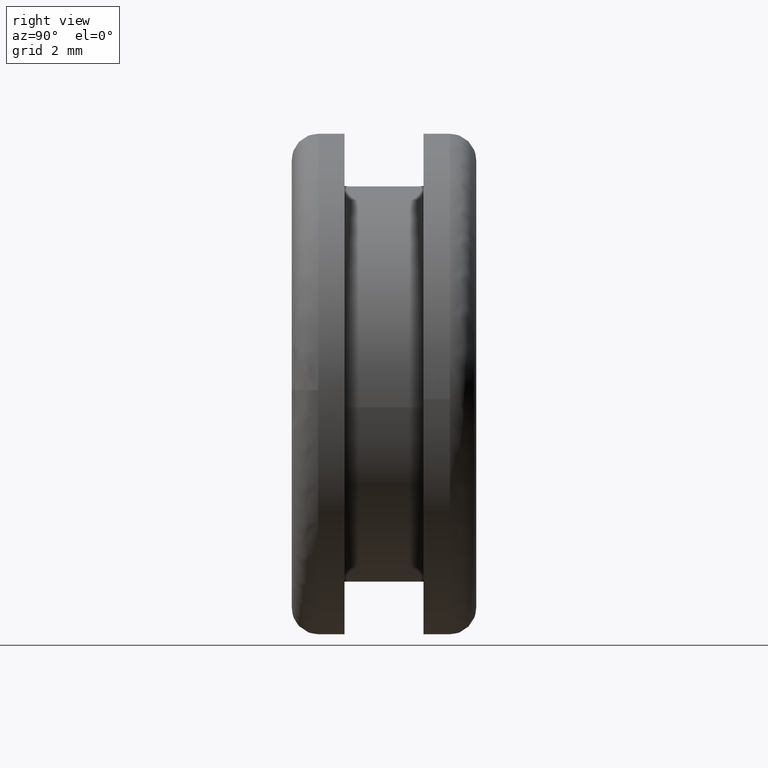
[diagram: clean part render]
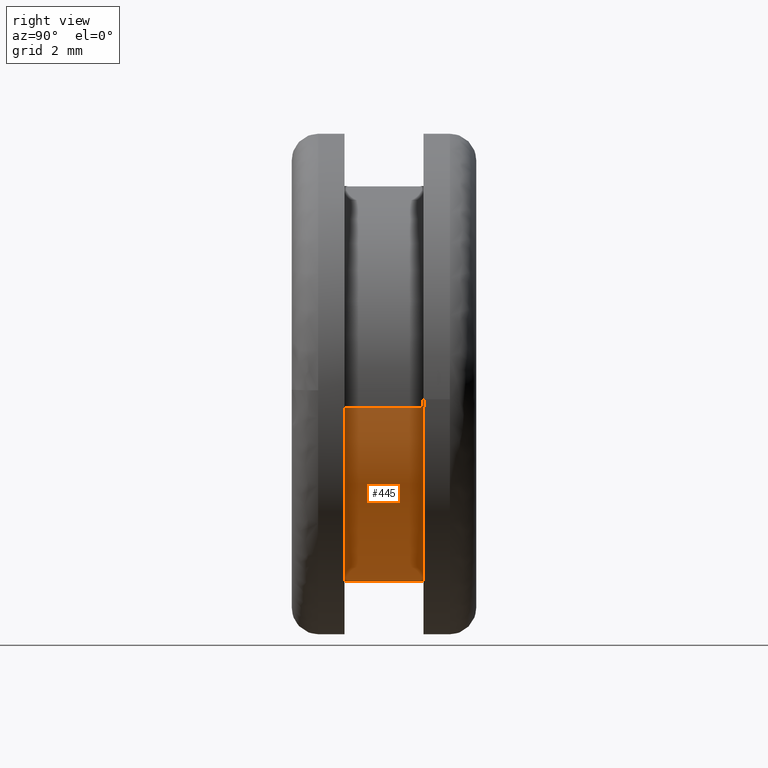
[diagram: same view with one face highlighted and labeled with its STEP entity id]
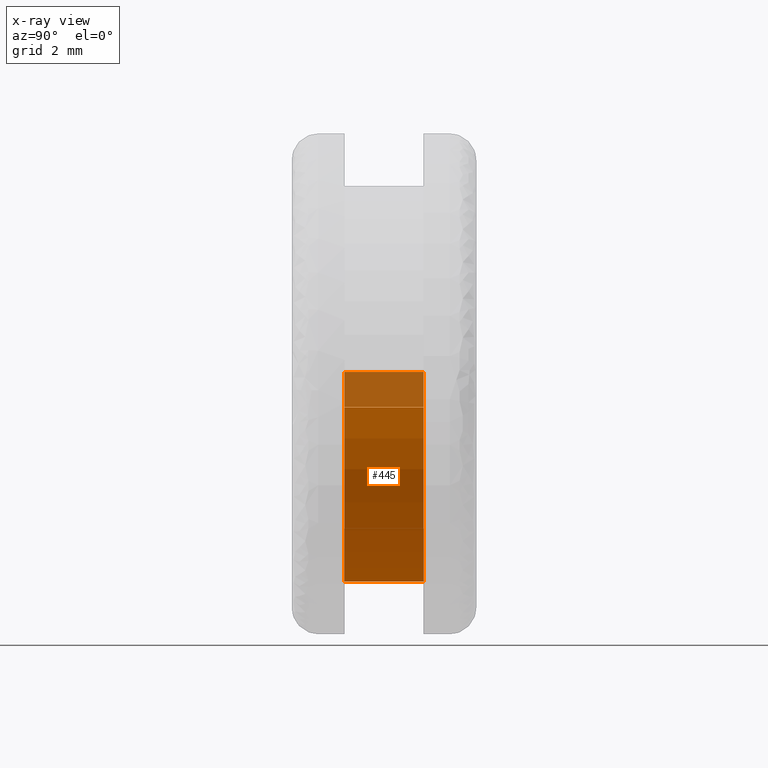
[diagram: x-ray of the same camera — body ghosted, the highlighted face saturated]
A machine part, right view. The second image highlights one B-rep face of the part: STEP entity #445.
The next image is the same camera in x-ray: the body ghosted, the highlighted face saturated — about 17% of this face is hidden behind the body in this view.
In plain terms, the highlighted face is a freeform B-spline surface patch.
Its self-contained STEP definition (entity closure, byte-faithful):
#282=CARTESIAN_POINT('',(7.447572368186221,1.999999999999989,-0.885249016135149));
#283=VERTEX_POINT('',#282);
#301=CARTESIAN_POINT('',(7.447572356828653,5.0,-0.885249111686859));
#302=VERTEX_POINT('',#301);
#303=CARTESIAN_POINT('',(7.447572356828653,5.0,-0.885249111686859));
#304=CARTESIAN_POINT('',(7.447572368186221,1.999999999999989,-0.885249016135149));
#305=QUASI_UNIFORM_CURVE('',1,(#303,#304),.UNSPECIFIED.,.F.,.U.);
#306=EDGE_CURVE('',#302,#283,#305,.T.);
#325=CARTESIAN_POINT('',(-7.486011239723709,5.0,0.457859933509482));
#326=VERTEX_POINT('',#325);
#340=CARTESIAN_POINT('',(-7.486011242863441,2.000000000000035,0.457859882174362));
#341=VERTEX_POINT('',#340);
#342=CARTESIAN_POINT('',(-7.486011239723709,5.0,0.457859933509482));
#343=CARTESIAN_POINT('',(-7.486011242863441,2.000000000000035,0.457859882174362));
#344=QUASI_UNIFORM_CURVE('',1,(#342,#343),.UNSPECIFIED.,.F.,.U.);
#345=EDGE_CURVE('',#326,#341,#344,.T.);
#363=CARTESIAN_POINT('',(-7.486010988164000,5.075000000000001,0.457864046511427));
#364=CARTESIAN_POINT('',(-7.943875034675429,5.075000000000002,-7.028146941652573));
#365=CARTESIAN_POINT('',(-0.457864046511427,5.075000000000001,-7.486010988164000));
#366=CARTESIAN_POINT('',(6.611576181296258,5.075000000000002,-7.918396475493956));
#367=CARTESIAN_POINT('',(7.447571447727496,5.075000000000002,-0.885256759925689));
#368=CARTESIAN_POINT('',(-7.486010988164000,1.923125000000000,0.457864046511427));
#369=CARTESIAN_POINT('',(-7.943875034675429,1.923125000000000,-7.028146941652573));
#370=CARTESIAN_POINT('',(-0.457864046511427,1.923125000000000,-7.486010988164000));
#371=CARTESIAN_POINT('',(6.611576181296258,1.923125000000000,-7.918396475493956));
#372=CARTESIAN_POINT('',(7.447571447727496,1.923125000000000,-0.885256759925689));
#380=(BOUNDED_SURFACE()B_SPLINE_SURFACE(2,1,((#363,#368),(#364,#369),(#365,#370),(#366,#371),(#367,#372)),.UNSPECIFIED.,.F.,.F.,.U.)B_SPLINE_SURFACE_WITH_KNOTS((3,2,3),(2,2),(0.0,12.426406871192849,24.355757467537980),(0.0,3.151875000000002),.UNSPECIFIED.)GEOMETRIC_REPRESENTATION_ITEM()RATIONAL_B_SPLINE_SURFACE(((1.0,1.0),(0.707106781186548,0.707106781186548),(1.0,1.0),(0.718822509939086,0.718822509939086),(0.977505800795127,0.977505800795127)))REPRESENTATION_ITEM('')SURFACE());
#381=CARTESIAN_POINT('',(0.0,2.0,-7.500000000000000));
#382=VERTEX_POINT('',#381);
#383=CARTESIAN_POINT('',(0.0,2.0,-7.500000000000000));
#384=CARTESIAN_POINT('',(6.661315919651561,2.0,-7.499999999999998));
#385=CARTESIAN_POINT('',(7.447572368186221,1.999999999999989,-0.885249016135149));
#393=(BOUNDED_CURVE()B_SPLINE_CURVE(2,(#383,#384,#385),.UNSPECIFIED.,.F.,.U.)B_SPLINE_CURVE_WITH_KNOTS((3,3),(0.0,0.229562649240826),.UNSPECIFIED.)CURVE()GEOMETRIC_REPRESENTATION_ITEM()RATIONAL_B_SPLINE_CURVE((1.0,0.731050626978044,0.956027098616722))REPRESENTATION_ITEM(''));
#394=EDGE_CURVE('',#382,#283,#393,.T.);
#395=ORIENTED_EDGE('',*,*,#394,.F.);
#396=CARTESIAN_POINT('',(-7.486011242863442,2.000000000000035,0.457859882174362));
#397=CARTESIAN_POINT('',(-7.500000000000000,2.0,0.229143636732774));
#398=CARTESIAN_POINT('',(-7.500000000000000,2.0,-1.928755E-016));
#399=CARTESIAN_POINT('',(-7.500000000000000,2.0,-7.500000000000000));
#400=CARTESIAN_POINT('',(0.0,2.0,-7.500000000000000));
#408=(BOUNDED_CURVE()B_SPLINE_CURVE(2,(#396,#397,#398,#399,#400),.UNSPECIFIED.,.F.,.U.)B_SPLINE_CURVE_WITH_KNOTS((3,2,3),(0.739333058226738,0.750000000000000,1.0),.UNSPECIFIED.)CURVE()GEOMETRIC_REPRESENTATION_ITEM()RATIONAL_B_SPLINE_CURVE((0.976072247386922,0.987502900356535,1.0,0.707106781186547,1.0))REPRESENTATION_ITEM(''));
#409=EDGE_CURVE('',#341,#382,#408,.T.);
#410=ORIENTED_EDGE('',*,*,#409,.F.);
#411=ORIENTED_EDGE('',*,*,#345,.F.);
#412=CARTESIAN_POINT('',(0.0,5.0,-7.500000000000000));
#413=VERTEX_POINT('',#412);
#414=CARTESIAN_POINT('',(-7.486011239723709,5.000000000000001,0.457859933509481));
#415=CARTESIAN_POINT('',(-7.500000000000000,5.0,0.229143662472302));
#416=CARTESIAN_POINT('',(-7.500000000000000,5.0,-1.928755E-016));
#417=CARTESIAN_POINT('',(-7.500000000000000,4.999999999999999,-7.500000000000000));
#418=CARTESIAN_POINT('',(0.0,5.0,-7.500000000000000));
#426=(BOUNDED_CURVE()B_SPLINE_CURVE(2,(#414,#415,#416,#417,#418),.UNSPECIFIED.,.F.,.U.)B_SPLINE_CURVE_WITH_KNOTS((3,2,3),(0.739333057043503,0.750000000000000,1.0),.UNSPECIFIED.)CURVE()GEOMETRIC_REPRESENTATION_ITEM()RATIONAL_B_SPLINE_CURVE((0.976072244851022,0.987502898970289,1.0,0.707106781186547,1.0))REPRESENTATION_ITEM(''));
#427=EDGE_CURVE('',#326,#413,#426,.T.);
#428=ORIENTED_EDGE('',*,*,#427,.T.);
#429=CARTESIAN_POINT('',(0.0,5.0,-7.500000000000000));
#430=CARTESIAN_POINT('',(6.661315833585835,5.0,-7.499999999999999));
#431=CARTESIAN_POINT('',(7.447572356828653,5.0,-0.885249111686859));
#439=(BOUNDED_CURVE()B_SPLINE_CURVE(2,(#429,#430,#431),.UNSPECIFIED.,.F.,.U.)B_SPLINE_CURVE_WITH_KNOTS((3,3),(0.0,0.229562647072528),.UNSPECIFIED.)CURVE()GEOMETRIC_REPRESENTATION_ITEM()RATIONAL_B_SPLINE_CURVE((1.0,0.731050629518363,0.956027094366763))REPRESENTATION_ITEM(''));
#440=EDGE_CURVE('',#413,#302,#439,.T.);
#441=ORIENTED_EDGE('',*,*,#440,.T.);
#442=ORIENTED_EDGE('',*,*,#306,.T.);
#443=EDGE_LOOP('',(#395,#410,#411,#428,#441,#442));
#444=FACE_OUTER_BOUND('',#443,.T.);
#445=ADVANCED_FACE('',(#444),#380,.T.);